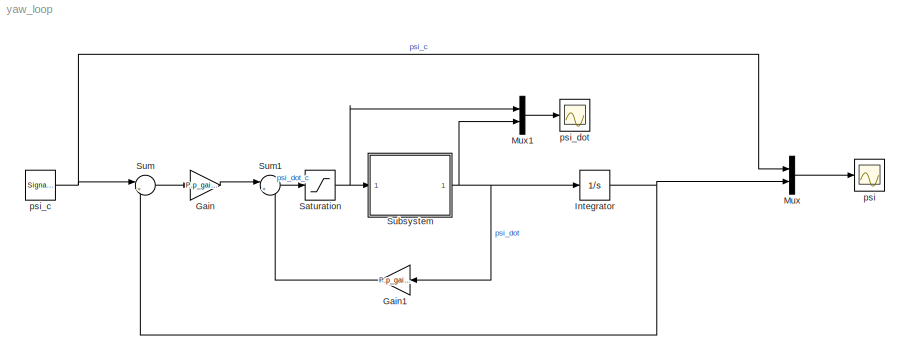
MODEL yaw_loop
KIND model
BLOCK [Gain] Gain
  Gain = P.p_gains.Kp_yaw
  OutDataTypeStr = Inherit: Inherit via internal rule
  ParamDataTypeStr = Inherit: Inherit via internal rule
  SID = 20
  SaturateOnIntegerOverflow = off
BLOCK [Gain] Gain1
  Gain = P.p_gains.Kd_yaw
  OutDataTypeStr = Inherit: Inherit via internal rule
  ParamDataTypeStr = Inherit: Inherit via internal rule
  SID = 23
  SaturateOnIntegerOverflow = off
BLOCK [Integrator] Integrator
  Ports = [1, 1]
  SID = 19
BLOCK [Mux] Mux
  DisplayOption = bar
  Inputs = 2
  Ports = [2, 1]
  SID = 13
BLOCK [Mux] Mux1
  DisplayOption = bar
  Inputs = 2
  Ports = [2, 1]
  SID = 24
BLOCK [Saturate] Saturation
  InputPortMap = u0
  LowerLimit = -P.yaw_rate_c_max
  Ports = [1, 1]
  SID = 26
  UpperLimit = P.yaw_rate_c_max
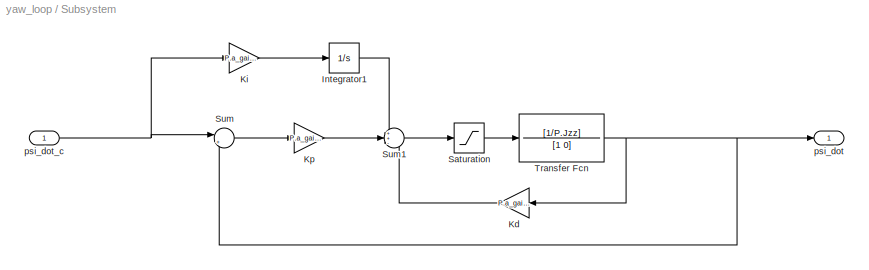
BLOCK [SubSystem] Subsystem
  FunctionWithSeparateData = off
  MaskHideContents = off
  MinAlgLoopOccurrences = off
  Opaque = off
  Ports = [1, 1]
  PropExecContextOutsideSubsystem = off
  RTWSystemCode = Auto
  RequestExecContextInheritance = off
  SID = 16
BLOCK [Integrator] Subsystem/Integrator1
  Ports = [1, 1]
  SID = 9
BLOCK [Gain] Subsystem/Kd
  Gain = P.a_gains.Kd_yaw_rate
  OutDataTypeStr = Inherit: Inherit via internal rule
  ParamDataTypeStr = Inherit: Inherit via internal rule
  SID = 14
  SaturateOnIntegerOverflow = off
BLOCK [Gain] Subsystem/Ki
  Gain = P.a_gains.Ki_yaw_rate
  OutDataTypeStr = Inherit: Inherit via internal rule
  ParamDataTypeStr = Inherit: Inherit via internal rule
  SID = 6
  SaturateOnIntegerOverflow = off
BLOCK [Gain] Subsystem/Kp
  Gain = P.a_gains.Kp_yaw_rate
  OutDataTypeStr = Inherit: Inherit via internal rule
  ParamDataTypeStr = Inherit: Inherit via internal rule
  SID = 3
  SaturateOnIntegerOverflow = off
BLOCK [Saturate] Subsystem/Saturation
  InputPortMap = u0
  LowerLimit = -P.T_psi_max
  Ports = [1, 1]
  SID = 7
  UpperLimit = P.T_psi_max
BLOCK [Sum] Subsystem/Sum
  IconShape = round
  InputSameDT = off
  Inputs = |+-
  OutDataTypeStr = Inherit: Inherit via internal rule
  Ports = [2, 1]
  SID = 5
  SaturateOnIntegerOverflow = off
BLOCK [Sum] Subsystem/Sum1
  IconShape = round
  InputSameDT = off
  Inputs = ++-
  OutDataTypeStr = Inherit: Inherit via internal rule
  Ports = [3, 1]
  SID = 8
  SaturateOnIntegerOverflow = off
BLOCK [TransferFcn] Subsystem/Transfer Fcn
  Denominator = [1 0]
  Numerator = [1/P.Jzz]
  SID = 2
BLOCK [Outport] Subsystem/psi_dot
  IconDisplay = Port number
  SID = 18
BLOCK [Inport] Subsystem/psi_dot_c
  IconDisplay = Port number
  SID = 17
BLOCK [Sum] Sum
  IconShape = round
  InputSameDT = off
  Inputs = |+-
  OutDataTypeStr = Inherit: Inherit via internal rule
  Ports = [2, 1]
  SID = 21
  SaturateOnIntegerOverflow = off
BLOCK [Sum] Sum1
  IconShape = round
  InputSameDT = off
  Inputs = |+-
  OutDataTypeStr = Inherit: Inherit via internal rule
  Ports = [2, 1]
  SID = 22
  SaturateOnIntegerOverflow = off
BLOCK [Scope] psi
  DataFormat = StructureWithTime
  Floating = off
  NumInputPorts = 1
  Ports = [1]
  SID = 12
  SampleTime = 0
  ShowLegends = off
  ZoomMode = xonly
BLOCK [SignalGenerator] psi_c
  Amplitude = 45*pi/180
  Frequency = 0.05
  Ports = [0, 1]
  SID = 15
  Units = rad/sec
  WaveForm = square
BLOCK [Scope] psi_dot
  DataFormat = StructureWithTime
  Floating = off
  NumInputPorts = 1
  Ports = [1]
  SID = 25
  SampleTime = 0
  SaveName = ScopeData1
  ShowLegends = off
  ZoomMode = xonly
LINE Gain1:1 -> Sum1:2
LINE Gain:1 -> Sum1:1
NET Integrator:1 -> Mux:2, Sum:2
LINE Mux1:1 -> psi_dot:1
LINE Mux:1 -> psi:1
NET Saturation:1 -> Mux1:1, Subsystem:1
LINE Subsystem/Integrator1:1 -> Subsystem/Sum1:1
LINE Subsystem/Kd:1 -> Subsystem/Sum1:3
LINE Subsystem/Ki:1 -> Subsystem/Integrator1:1
LINE Subsystem/Kp:1 -> Subsystem/Sum1:2
LINE Subsystem/Saturation:1 -> Subsystem/Transfer Fcn:1
LINE Subsystem/Sum1:1 -> Subsystem/Saturation:1
LINE Subsystem/Sum:1 -> Subsystem/Kp:1
NET Subsystem/Transfer Fcn:1 -> Subsystem/Kd:1, Subsystem/Sum:2, Subsystem/psi_dot:1
NET Subsystem/psi_dot_c:1 -> Subsystem/Ki:1, Subsystem/Sum:1
NET Subsystem:1 -> Gain1:1, Integrator:1, Mux1:2
LINE Sum1:1 -> Saturation:1
LINE Sum:1 -> Gain:1
NET psi_c:1 -> Mux:1, Sum:1
note: NET lines group one-source signal fan-out (src -> all destinations, sorted); 1:1 wires keep LINE
